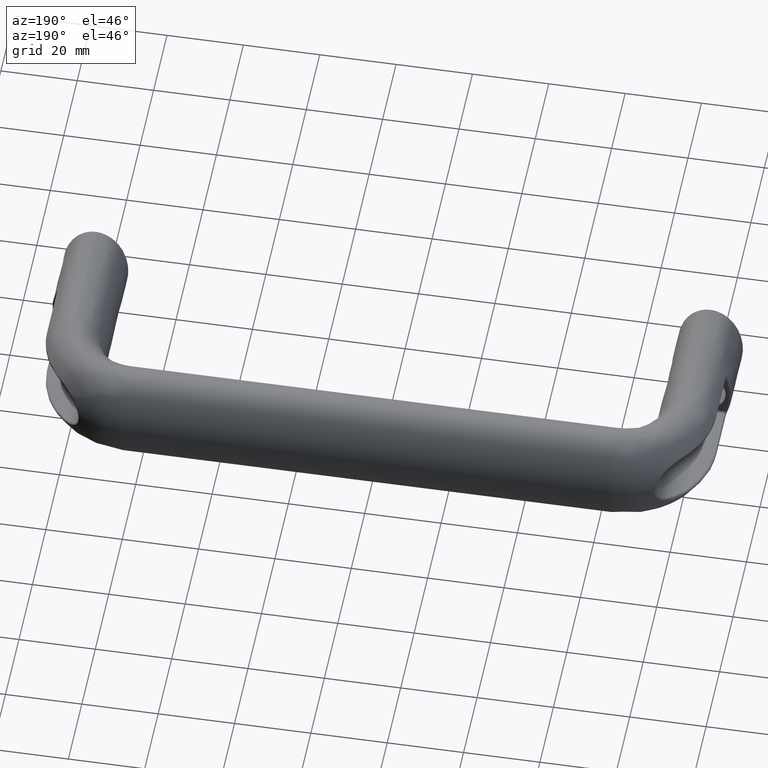
[diagram: clean part render]
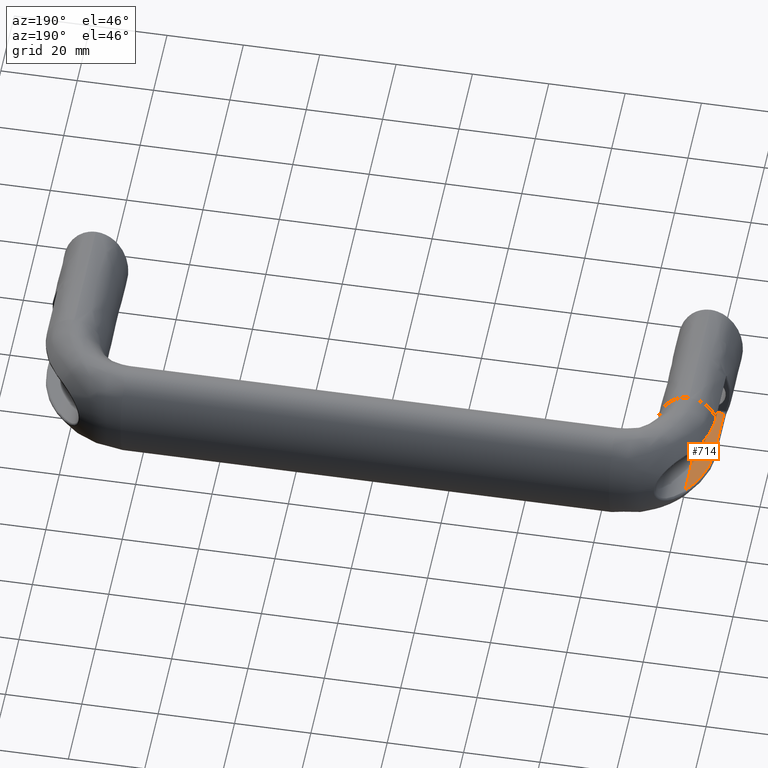
[diagram: same view with one face highlighted and labeled with its STEP entity id]
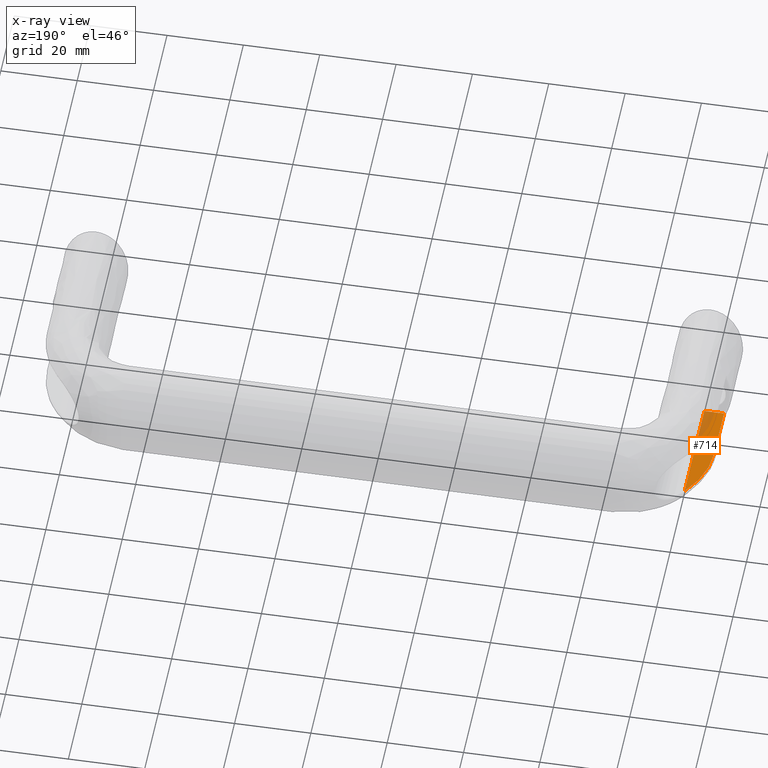
[diagram: x-ray of the same camera — body ghosted, the highlighted face saturated]
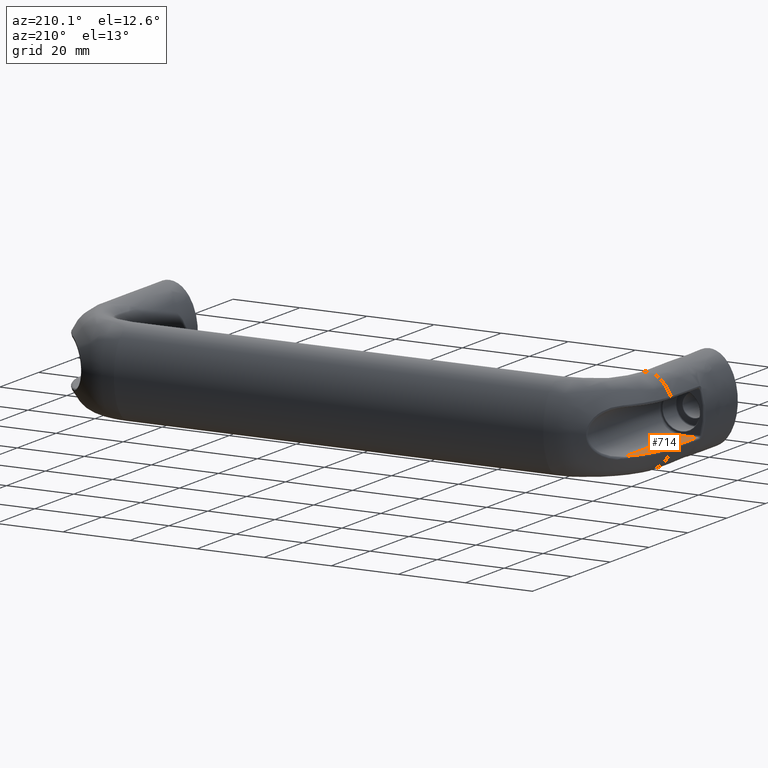
[diagram: same view with one face highlighted and labeled with its STEP entity id]
A machine part, auxiliary view. The second image highlights one B-rep face of the part: STEP entity #714.
The next image is the same camera in x-ray: the body ghosted, the highlighted face saturated — about 15% of this face is hidden behind the body in this view.
A second angle (auxiliary view) of the same face is appended — the face is thin or edge-on in the first view.
In plain terms, the highlighted planar face has unit normal (0, 0, -1).
Its self-contained STEP definition (entity closure, byte-faithful):
#66=LINE('',#1594,#88);
#69=LINE('',#1778,#91);
#71=LINE('',#1845,#93);
#88=VECTOR('',#948,14.5);
#91=VECTOR('',#963,5.11900367569236);
#93=VECTOR('',#985,29.0082159809616);
#159=PLANE('',#800);
#207=FACE_OUTER_BOUND('',#271,.T.);
#271=EDGE_LOOP('',(#643,#644,#645,#646));
#294=B_SPLINE_CURVE_WITH_KNOTS('',3,(#1633,#1634,#1635,#1636,#1637),
 .UNSPECIFIED.,.F.,.F.,(4,1,4),(4.12990725370554E-16,0.896194853491561,
1.56834099361023),.UNSPECIFIED.);
#354=VERTEX_POINT('',#1519);
#360=VERTEX_POINT('',#1590);
#362=VERTEX_POINT('',#1625);
#368=VERTEX_POINT('',#1776);
#444=EDGE_CURVE('',#354,#360,#66,.T.);
#447=EDGE_CURVE('',#360,#362,#294,.T.);
#457=EDGE_CURVE('',#368,#354,#69,.T.);
#466=EDGE_CURVE('',#362,#368,#71,.T.);
#643=ORIENTED_EDGE('',*,*,#447,.F.);
#644=ORIENTED_EDGE('',*,*,#444,.F.);
#645=ORIENTED_EDGE('',*,*,#457,.F.);
#646=ORIENTED_EDGE('',*,*,#466,.F.);
#714=ADVANCED_FACE('',(#207),#159,.F.);
#800=AXIS2_PLACEMENT_3D('',#1847,#987,#988);
#948=DIRECTION('',(-1.73472347597681E-16,1.,0.));
#963=DIRECTION('',(-1.,0.,0.));
#985=DIRECTION('',(0.,-1.,0.));
#987=DIRECTION('center_axis',(0.,0.,-1.));
#988=DIRECTION('ref_axis',(1.,0.,0.));
#1519=CARTESIAN_POINT('',(-6.61900367569238,17.5,-6.49999999999999));
#1590=CARTESIAN_POINT('',(-6.61900367569238,32.,-6.49999999999999));
#1594=CARTESIAN_POINT('',(-6.61900367569237,-1.14821410638003E-15,-6.49999999999999));
#1625=CARTESIAN_POINT('',(-1.50000000008957,46.5082159809616,-6.49999999999999));
#1633=CARTESIAN_POINT('Ctrl Pts',(-6.61900367569238,32.,-6.49999999999999));
#1634=CARTESIAN_POINT('Ctrl Pts',(-6.61900367569238,34.9873161783052,-6.49999999999999));
#1635=CARTESIAN_POINT('Ctrl Pts',(-5.59234208490116,40.2134738024686,-6.49999999999999));
#1636=CARTESIAN_POINT('Ctrl Pts',(-2.90600657791417,44.7638169154463,-6.49999999999999));
#1637=CARTESIAN_POINT('Ctrl Pts',(-1.50000000017911,46.5082159809616,-6.49999999999999));
#1776=CARTESIAN_POINT('',(-1.50000000000002,17.5,-6.49999999999999));
#1778=CARTESIAN_POINT('',(-4.55560796609515,17.5,-6.49999999999999));
#1845=CARTESIAN_POINT('',(-1.50000000000002,57.,-6.49999999999999));
#1847=CARTESIAN_POINT('Origin',(-7.36121593219028,57.,-6.49999999999999));